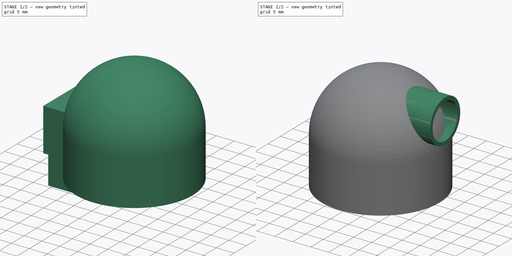
[diagram: build sequence overview — one tinted view per stage of 2, left to right]
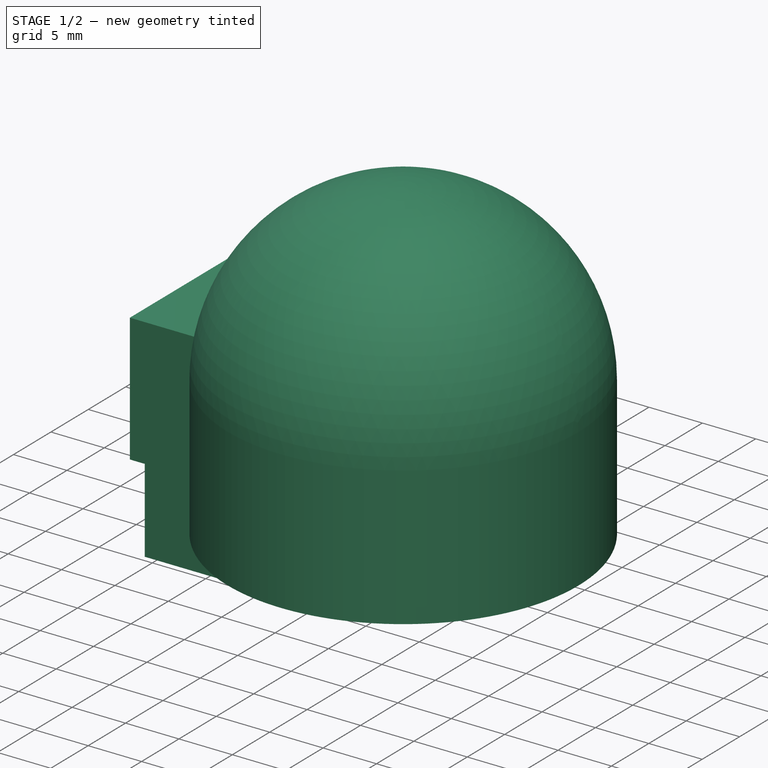
[diagram: stage 1 of 2 — iso view after this stage's code; geometry added in this stage tinted green]
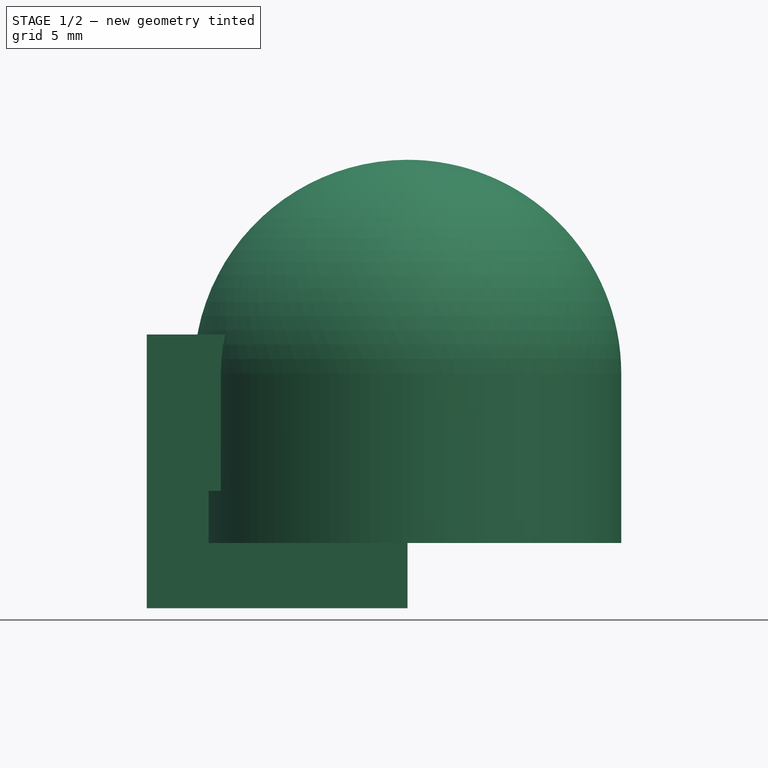
[diagram: stage 1 of 2 — front view after this stage's code; geometry added in this stage tinted green]
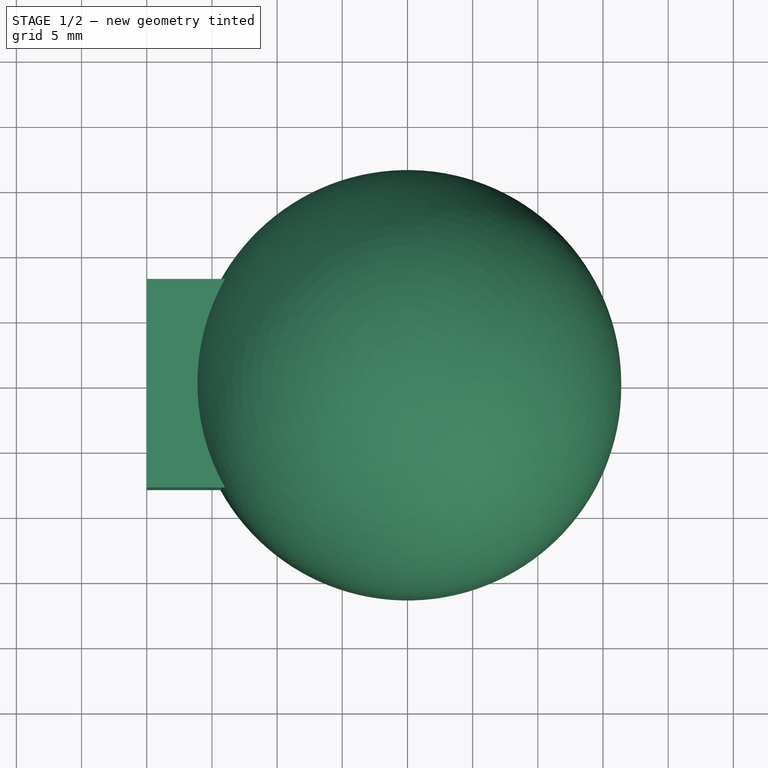
[diagram: stage 1 of 2 — top view after this stage's code; geometry added in this stage tinted green]
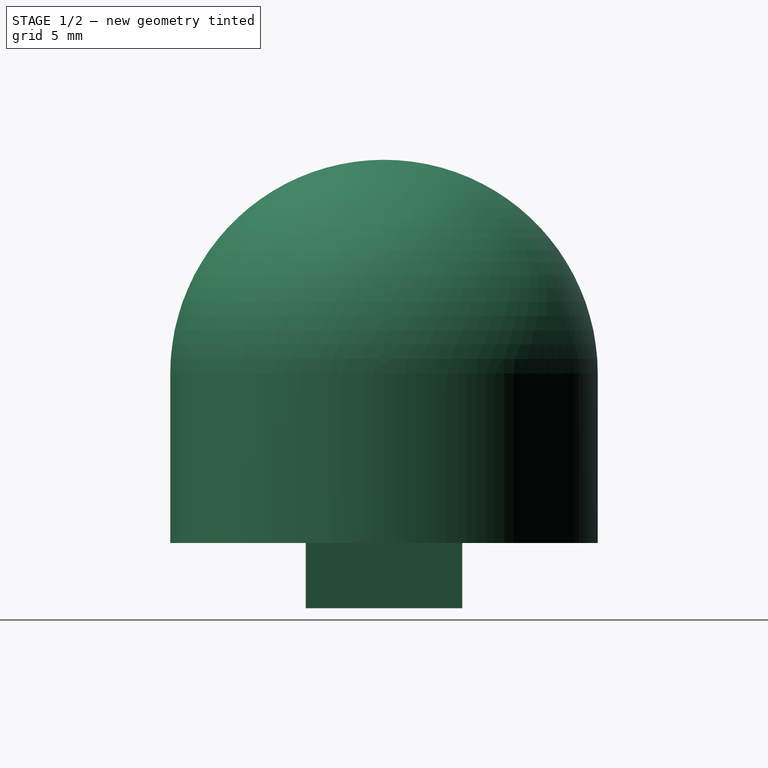
[diagram: stage 1 of 2 — right view after this stage's code; geometry added in this stage tinted green]
FCSTD DOCUMENT  (FreeCAD 0.16R)
Label: InstantPotDiverter3
License: All rights reserved
LicenseURL: http://en.wikipedia.org/wiki/All_rights_reserved
objects: Sketcher::SketchObject×3, PartDesign::Pad×2, PartDesign::Revolution×1, Part::Cut×1
note: 10 computed .brp shape members not serialized (recipe doc carries the construction recipe); baked Part::Feature solids carry a one-line shape summary decoded from their .brp

FEATURE [Sketcher::SketchObject] Sketch
  Placement = pos=(0,0,0) rot=(1,0,0;1.5708rad)
  sketch-geometry (6):
    g0: LineSegment StartX=14.4 StartY=13 StartZ=0 EndX=14.4 EndY=0 EndZ=0
    g1: LineSegment StartX=14.4 StartY=0 StartZ=0 EndX=16.4 EndY=0 EndZ=0
    g2: LineSegment StartX=16.4 StartY=0 StartZ=0 EndX=16.4 EndY=13 EndZ=0
    g3: ArcOfCircle CenterX=0 CenterY=13 CenterZ=0 NormalX=0 NormalY=0 NormalZ=1 Radius=14.4 StartAngle=3.4673e-08 EndAngle=1.5708
    g4: ArcOfCircle CenterX=0 CenterY=13 CenterZ=0 NormalX=0 NormalY=0 NormalZ=1 Radius=16.4 StartAngle=6.28318 EndAngle=7.85398
    g5: LineSegment StartX=0 StartY=29.4 StartZ=0 EndX=0 EndY=27.4 EndZ=0
  constraints (20):
    c: Vertical(g0)
    c: Coincident(g0,g1)
    c: Horizontal(g1)
    c: Coincident(g1,g2)
    c: Vertical(g2)
    c: Coincident(g3,g0)
    c: PointOnObject(g3,g-2)
    c: Coincident(g4,g3)
    c: Coincident(g4,g2)
    c: DistanceX(g1,g1) = 2
    c: PointOnObject(g4,g-2)
    c: PointOnObject(g1,g-1)
    c: Vertical(g5)
    c: Coincident(g5,g4)
    c: Coincident(g5,g3)
    c: Tangent(g0,g3)
    c: Tangent(g2,g4)
    c: DistanceX(g0) = 14.4
    c: DistanceY(g2) = 13
    c: Perpendicular(g4,g-2)
FEATURE [PartDesign::Revolution] Revolution  label="Body"
  Angle = 360
  Axis = (0,0,1)
  Base = (0,0,0)
  Placement = pos=(0,0,0) rot=(1,0,0;1.5708rad)
  ReferenceAxis = -> Sketch [V_Axis]
  Reversed = true
  Sketch = -> Sketch
FEATURE [Sketcher::SketchObject] Sketch002
  Placement = pos=(0,0,0) rot=(0.57735,0.57735,0.57735;2.0944rad)
  sketch-geometry (8):
    g0: LineSegment StartX=-8 StartY=16 StartZ=0 EndX=8 EndY=16 EndZ=0
    g1: LineSegment StartX=8 StartY=16 StartZ=0 EndX=8 EndY=4 EndZ=0
    g2: LineSegment StartX=-8 StartY=4 StartZ=0 EndX=-8 EndY=16 EndZ=0
    g3: LineSegment StartX=-8 StartY=4 StartZ=0 EndX=-6 EndY=4 EndZ=0
    g4: LineSegment StartX=-6 StartY=4 StartZ=0 EndX=-6 EndY=-5 EndZ=0
    g5: LineSegment StartX=-6 StartY=-5 StartZ=0 EndX=6 EndY=-5 EndZ=0
    g6: LineSegment StartX=6 StartY=-5 StartZ=0 EndX=6 EndY=4 EndZ=0
    g7: LineSegment StartX=6 StartY=4 StartZ=0 EndX=8 EndY=4 EndZ=0
  constraints (23):
    c: Coincident(g0,g1)
    c: Coincident(g2,g0)
    c: Horizontal(g0)
    c: Vertical(g1)
    c: Vertical(g2)
    c: DistanceX(g0,g0) = 16
    c: DistanceY(g0) = 16
    c: Symmetric(g1,g2,g-2)
    c: Coincident(g2,g3)
    c: Horizontal(g3)
    c: Coincident(g3,g4)
    c: Vertical(g4)
    c: Coincident(g4,g5)
    c: Coincident(g5,g6)
    c: Coincident(g6,g7)
    c: Coincident(g7,g1)
    c: Distance(g3) = 2
    c: Distance(g7) = 2
    c: Vertical(g6)
    c: Horizontal(g5)
    c: DistanceY(g4) = -5
    c: DistanceY(g3) = 4
    c: Horizontal(g7)
FEATURE [PartDesign::Pad] Pad001  label="Slot"
  Length = 20
  Length2 = 100
  Placement = pos=(0,0,0) rot=(0.57735,0.57735,0.57735;2.0944rad)
  Reversed = true
  Sketch = -> Sketch002
  Type = 0
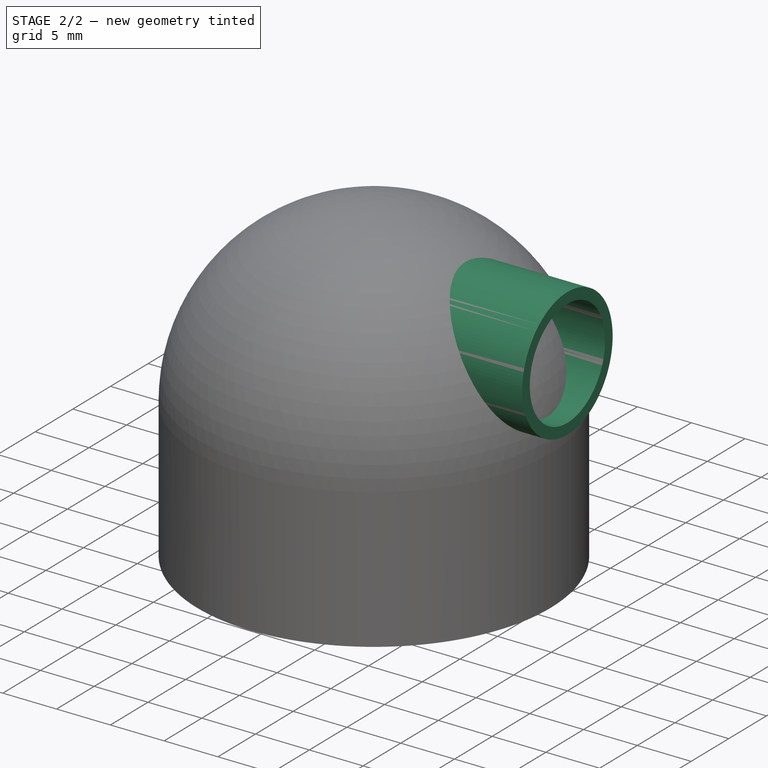
[diagram: stage 2 of 2 — iso view after this stage's code; geometry added in this stage tinted green]
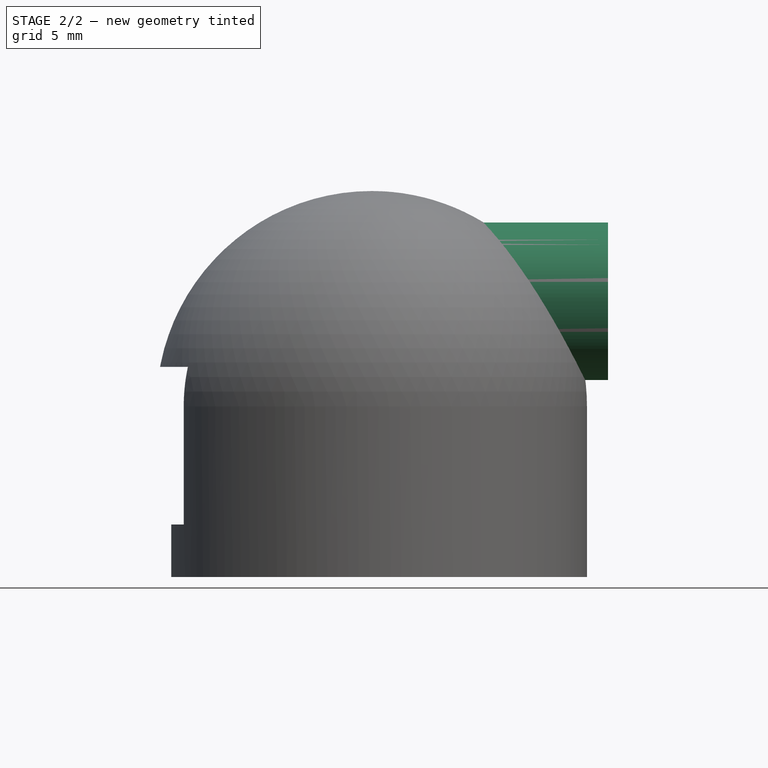
[diagram: stage 2 of 2 — front view after this stage's code; geometry added in this stage tinted green]
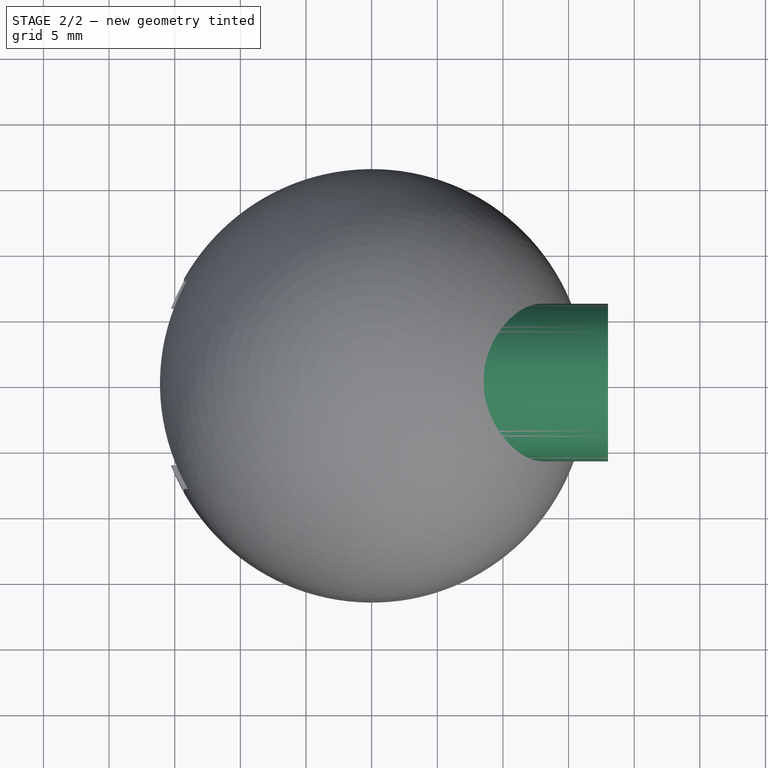
[diagram: stage 2 of 2 — top view after this stage's code; geometry added in this stage tinted green]
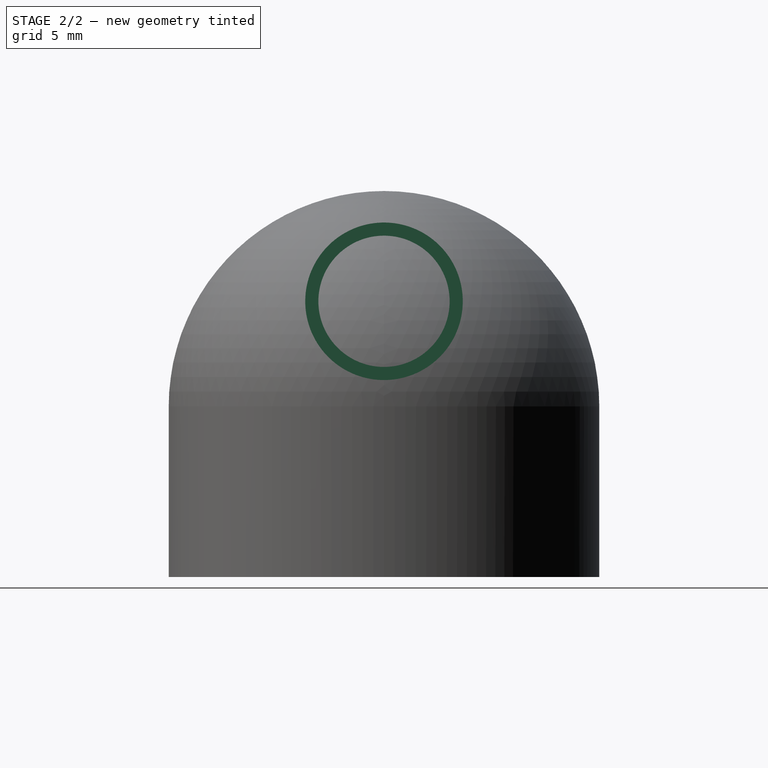
[diagram: stage 2 of 2 — right view after this stage's code; geometry added in this stage tinted green]
FEATURE [Sketcher::SketchObject] Sketch001
  Placement = pos=(0,0,0) rot=(0.57735,0.57735,0.57735;2.0944rad)
  sketch-geometry (2):
    g0: Circle CenterX=0 CenterY=21 CenterZ=0 NormalX=0 NormalY=0 NormalZ=1 Radius=6
    g1: Circle CenterX=0 CenterY=21 CenterZ=0 NormalX=0 NormalY=0 NormalZ=1 Radius=5
  constraints (5):
    c: Radius(g0) = 6
    c: DistanceY(g-1,g0) = 21
    c: Coincident(g1,g0)
    c: PointOnObject(g0,g-2)
    c: Radius(g1) = 5
FEATURE [PartDesign::Pad] Pad  label="Spout"
  Length = 18
  Length2 = 1
  Placement = pos=(0,0,0) rot=(0.57735,0.57735,0.57735;2.0944rad)
  Sketch = -> Sketch001
  Type = 0
FEATURE [Part::Cut] Cut
  Base = -> Revolution
  Tool = -> Pad001
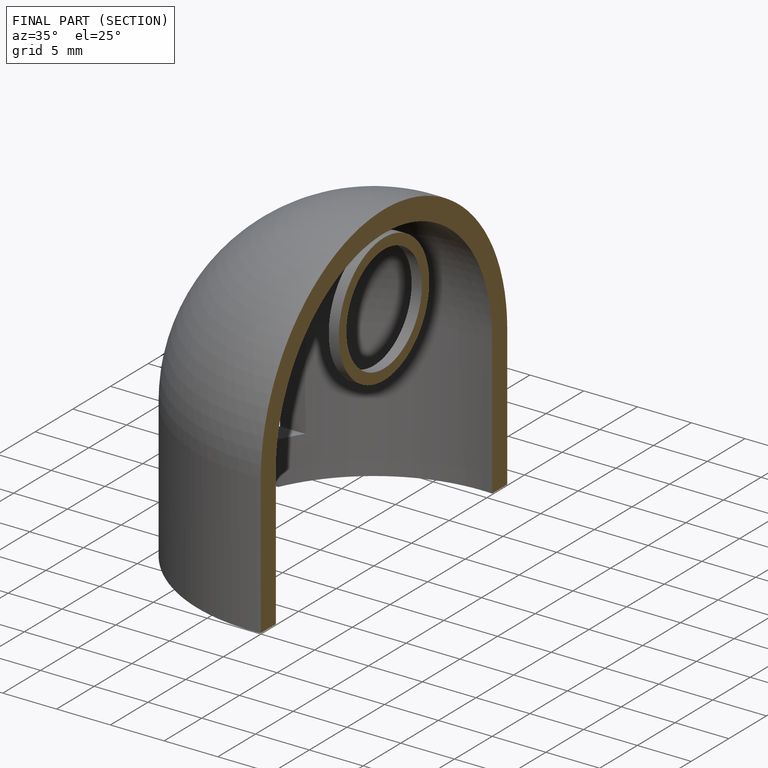
[diagram: finished part — half-section view (interior)]
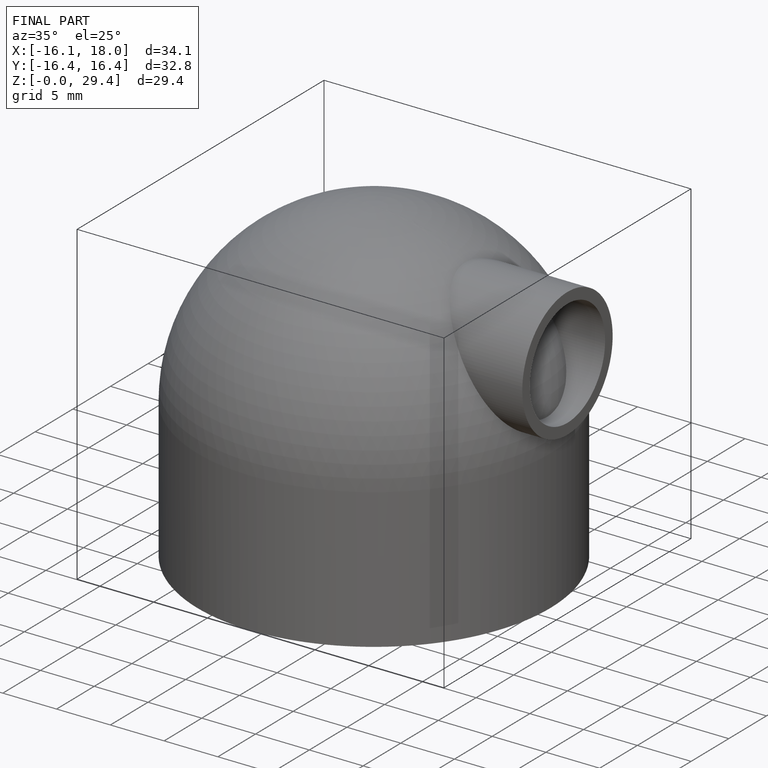
[diagram: finished part — iso view with bounding-box wireframe]
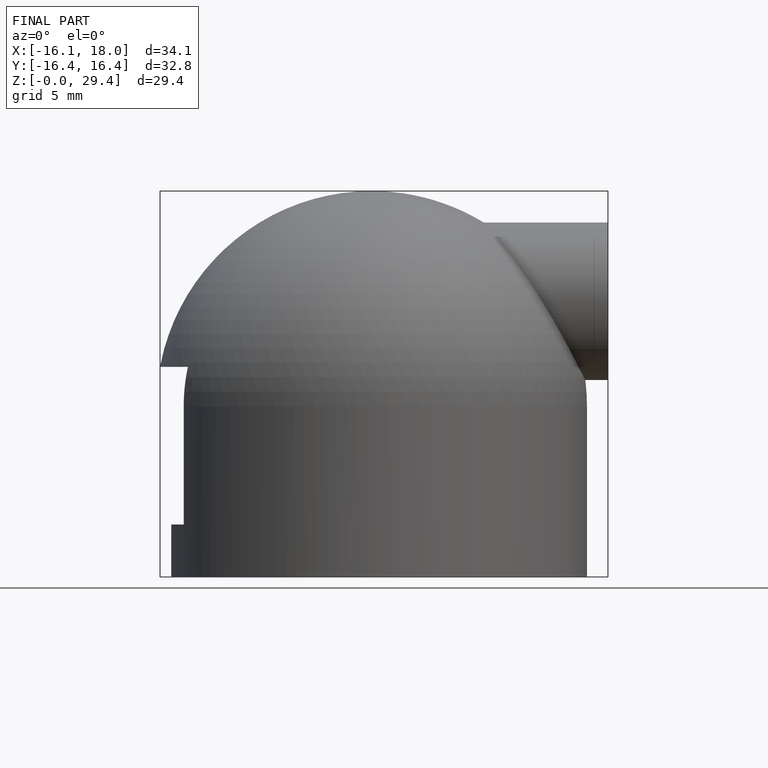
[diagram: finished part — front view with bounding-box wireframe]
